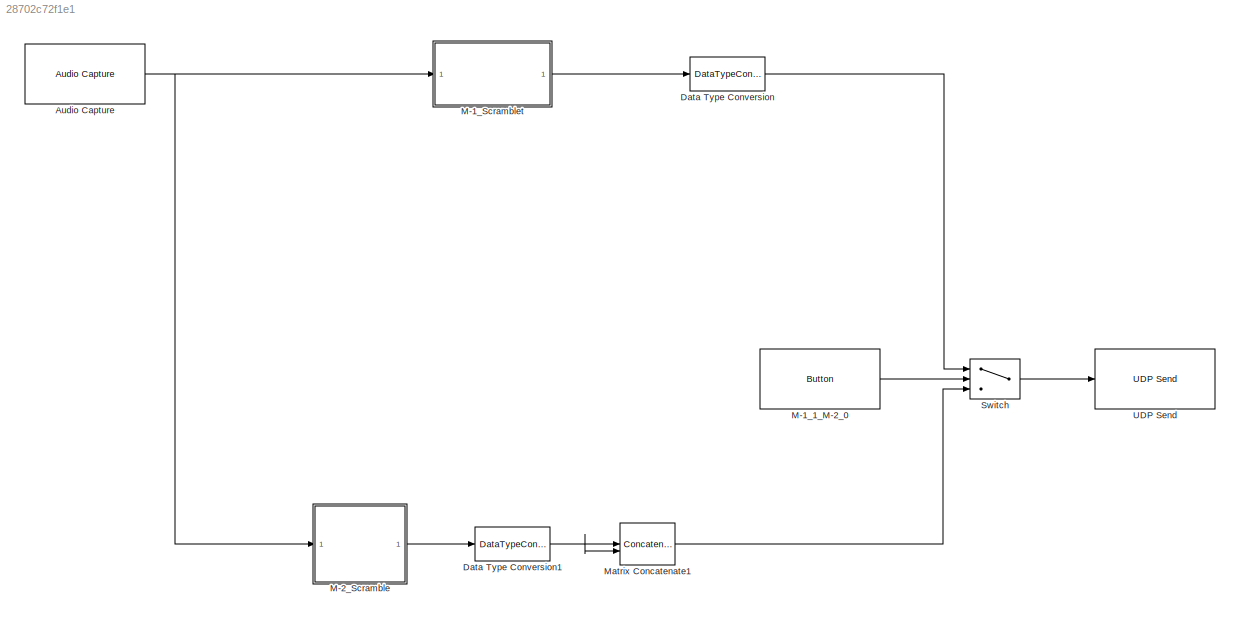
MODEL slx_28702c72f1e1
KIND model
CONFIG AbsTol = auto
CONFIG EnableMultiTasking = off
CONFIG FixedStep = auto
CONFIG MaxStep = auto
CONFIG MinStep = auto
CONFIG RelTol = 1e-3
CONFIG SampleTimeConstraint = Unconstrained
CONFIG SolverName = FixedStepAuto
CONFIG StartTime = 0.0
CONFIG StopTime = 10.0
BLOCK [Reference] Audio Capture  REF=androidaudiovideolib/Audio Capture
  SourceBlock = androidaudiovideolib/Audio Capture
  SourceType = codertarget.internal.androidAudioCapture
BLOCK [DataTypeConversion] Data Type Conversion
  OutDataTypeStr = int16
  RndMeth = Floor
  SaturateOnIntegerOverflow = off
BLOCK [DataTypeConversion] Data Type Conversion1
  OutDataTypeStr = int16
  RndMeth = Floor
  SaturateOnIntegerOverflow = off
BLOCK [Reference] M-1_1_M-2_0  REF=androiduilib/Button
  SourceBlock = androiduilib/Button
  SourceType = codertarget.internal.androidButton
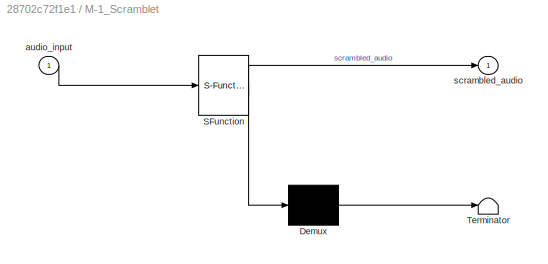
BLOCK [SubSystem] M-1_Scramblet
  ErrorFcn = Stateflow.Translate.translate
  LibrarySourceBlock = simulink/User-Defined\nFunctions/MATLAB Function
  PermitHierarchicalResolution = ExplicitOnly
  SFBlockType = MATLAB Function
  TreatAsAtomicUnit = on
BLOCK [Demux] M-1_Scramblet/ Demux 
  Outputs = 1
BLOCK [S-Function] M-1_Scramblet/ SFunction 
  EnableBusSupport = on
  FunctionName = sf_sfun
  PortCounts = [1 2]
  SFcnIsStateOwnerBlock = off
  SFunctionDeploymentMode = off
  Tag = Stateflow S-Function 3
BLOCK [Terminator] M-1_Scramblet/ Terminator 
BLOCK [Inport] M-1_Scramblet/audio_input
BLOCK [Outport] M-1_Scramblet/scrambled_audio
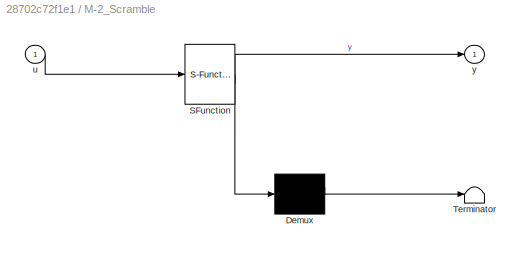
BLOCK [SubSystem] M-2_Scramble
  ErrorFcn = Stateflow.Translate.translate
  LibrarySourceBlock = simulink/User-Defined\nFunctions/MATLAB Function
  PermitHierarchicalResolution = ExplicitOnly
  SFBlockType = MATLAB Function
  TreatAsAtomicUnit = on
BLOCK [Demux] M-2_Scramble/ Demux 
  Outputs = 1
BLOCK [S-Function] M-2_Scramble/ SFunction 
  EnableBusSupport = on
  FunctionName = sf_sfun
  PortCounts = [1 2]
  SFcnIsStateOwnerBlock = off
  SFunctionDeploymentMode = off
  Tag = Stateflow S-Function 2
BLOCK [Terminator] M-2_Scramble/ Terminator 
BLOCK [Inport] M-2_Scramble/u
BLOCK [Outport] M-2_Scramble/y
BLOCK [Concatenate] Matrix Concatenate1
  ConcatenateDimension = 2
  Mode = Multidimensional array
BLOCK [Switch] Switch
  Criteria = u2 > Threshold
  InputSameDT = off
  SaturateOnIntegerOverflow = off
BLOCK [Reference] UDP Send  REF=androidcommunicationlib/UDP Send
  SourceBlock = androidcommunicationlib/UDP Send
  SourceType = UDP Send
NET Audio Capture:1 -> M-1_Scramblet:1, M-2_Scramble:1
NET Data Type Conversion1:1 -> Matrix Concatenate1:1, Matrix Concatenate1:2
LINE Data Type Conversion:1 -> Switch:1
LINE M-1_1_M-2_0:1 -> Switch:2
LINE M-1_Scramblet:1 -> Data Type Conversion:1
LINE M-2_Scramble:1 -> Data Type Conversion1:1
LINE Matrix Concatenate1:1 -> Switch:3
LINE Switch:1 -> UDP Send:1
note: NET lines group one-source signal fan-out (src -> all destinations, sorted); 1:1 wires keep LINE
CHART M-2_Scramble states=1 transitions=1
  STATE_LABEL 'eML_blk_kernel()'
  STATE_LABEL 'SCRIPT:\nfunction y = scrambler(u)\n    % Extract the first channel of the input matrix (assuming u is Nx2)\n    u = u(:,1);\n\n    % Define the bucket size\n    bucketSize = 20;\n\n    % Perform FFT on the entire signal\n    fftResult = fft(u);\n    avg = sum(fftResult)/length(fftResult);\n    \n    % Number of buckets in the entire signal\n    numBuckets = floor(length(fftResult) / bucketSize);\n\n    % Add va...<+1472ch>'
CHART M-1_Scramblet states=1 transitions=1
  STATE_LABEL 'eML_blk_kernel()'
  STATE_LABEL 'SCRIPT:\nfunction scrambled_audio = scramble_freq(audio_input)\n    % Scramble the audio input in the frequency domain with random swapping using a seed\n    % audio_input: [nx2] array representing stereo audio samples\n    % seed: An integer seed for generating a consistent permutation\n    seed=123;\n    % Pre-allocate scrambled_audio array\n    scrambled_audio = zeros(size(audio_input));\n    \n    % Se...<+679ch>'
CHART  states=0 transitions=0
CHART  states=0 transitions=0
